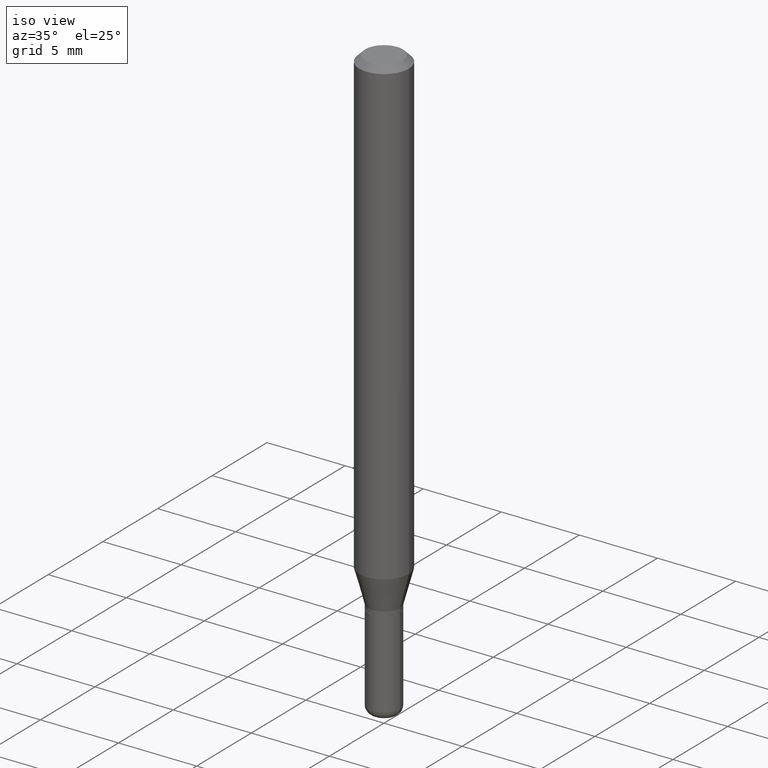
[diagram: clean part render]
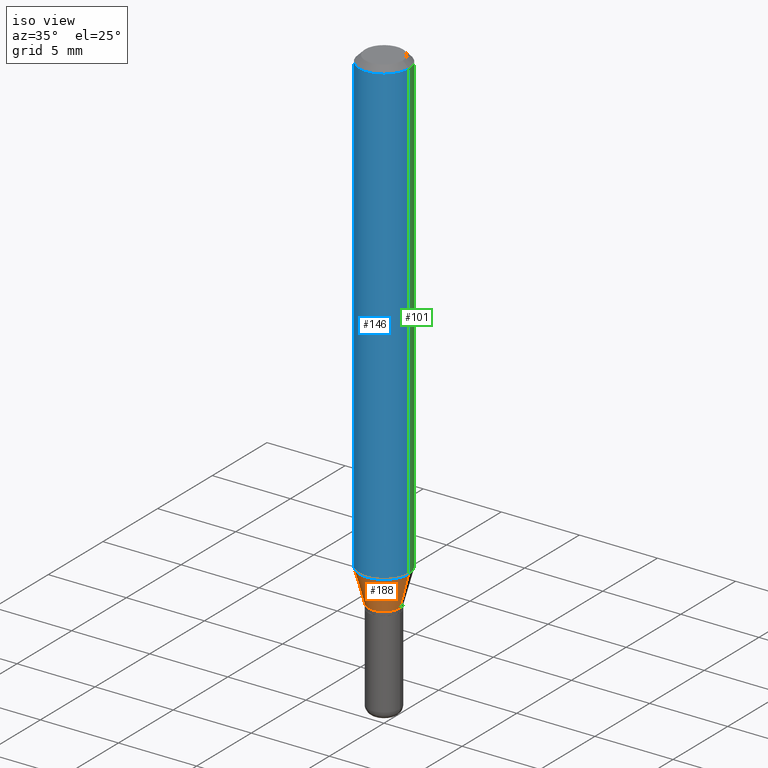
[diagram: same view with three faces highlighted in distinct colors, each labeled with its STEP entity id]
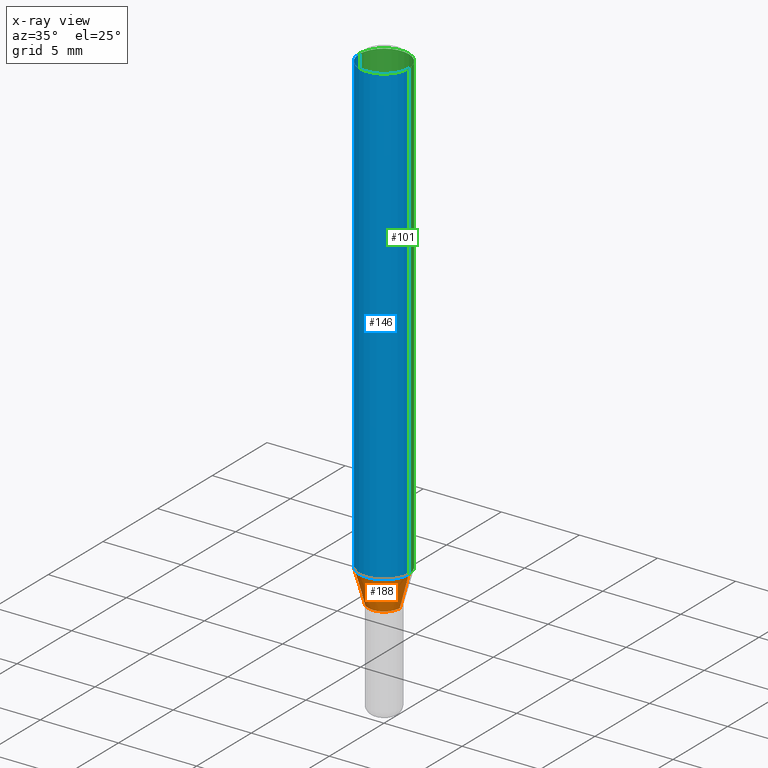
[diagram: x-ray of the same camera — body ghosted, the three highlighted faces saturated]
A machine part, iso view with three faces highlighted in distinct colors.
The next image is the same camera in x-ray (body ghosted, the three faces saturated) — at least one of them is partly hidden behind the body in this view.
Their STEP definitions:

[orange] entity #188 — the highlighted conical surface has half-angle 15 deg.
#4 = CARTESIAN_POINT ( 'NONE',  ( -0.04000000000000000083, -4.080134579249892145E-15, -1.250000000000000000 ) ) ;
#16 = EDGE_CURVE ( 'NONE', #430, #267, #190, .T. ) ;
#18 = ORIENTED_EDGE ( 'NONE', *, *, #16, .T. ) ;
#35 = EDGE_CURVE ( 'NONE', #399, #430, #443, .T. ) ;
#65 = ORIENTED_EDGE ( 'NONE', *, *, #35, .T. ) ;
#73 = DIRECTION ( 'NONE',  ( -2.445468806185136597E-29, 3.491481338843145583E-15, 1.000000000000000000 ) ) ;
#81 = AXIS2_PLACEMENT_3D ( 'NONE', #428, #229, #388 ) ;
#128 = EDGE_LOOP ( 'NONE', ( #216, #65, #18, #287 ) ) ;
#184 = CARTESIAN_POINT ( 'NONE',  ( 2.851487196488747125E-29, -4.071167994173504722E-15, -1.166028856829700366 ) ) ;
#185 = CARTESIAN_POINT ( 'NONE',  ( 3.056836007731421306E-29, -4.364351673553932471E-15, -1.250000000000000000 ) ) ;
#188 = ADVANCED_FACE ( 'NONE', ( #382 ), #260, .T. ) ;
#190 = LINE ( 'NONE', #346, #478 ) ;
#216 = ORIENTED_EDGE ( 'NONE', *, *, #334, .F. ) ;
#221 = CIRCLE ( 'NONE', #412, 0.06250000000000000000 ) ;
#229 = DIRECTION ( 'NONE',  ( -2.445468806185136597E-29, 3.491481338843145583E-15, 1.000000000000000000 ) ) ;
#244 = DIRECTION ( 'NONE',  ( -0.2588190451025207950, 5.211531920934546309E-15, 0.9659258262890682012 ) ) ;
#260 = CONICAL_SURFACE ( 'NONE', #339, 0.04000000000000000083, 0.2617993877991495189 ) ;
#267 = VERTEX_POINT ( 'NONE', #457 ) ;
#286 = LINE ( 'NONE', #4, #401 ) ;
#287 = ORIENTED_EDGE ( 'NONE', *, *, #488, .F. ) ;
#298 = DIRECTION ( 'NONE',  ( -2.445468806185136597E-29, 3.491481338843145583E-15, 1.000000000000000000 ) ) ;
#303 = DIRECTION ( 'NONE',  ( 1.000000000000000000, -6.982962677686271444E-15, 0.000000000000000000 ) ) ;
#334 = EDGE_CURVE ( 'NONE', #399, #380, #286, .T. ) ;
#339 = AXIS2_PLACEMENT_3D ( 'NONE', #185, #298, #303 ) ;
#346 = CARTESIAN_POINT ( 'NONE',  ( 0.04000000000000000083, -4.643670180661383298E-15, -1.250000000000000000 ) ) ;
#380 = VERTEX_POINT ( 'NONE', #438 ) ;
#382 = FACE_OUTER_BOUND ( 'NONE', #128, .T. ) ;
#383 = CARTESIAN_POINT ( 'NONE',  ( 0.04000000000000000083, -4.643670180661383298E-15, -1.250000000000000000 ) ) ;
#388 = DIRECTION ( 'NONE',  ( 1.000000000000000000, -6.982962677686271444E-15, 0.000000000000000000 ) ) ;
#399 = VERTEX_POINT ( 'NONE', #491 ) ;
#401 = VECTOR ( 'NONE', #244, 39.37007874015748854 ) ;
#412 = AXIS2_PLACEMENT_3D ( 'NONE', #184, #73, #504 ) ;
#428 = CARTESIAN_POINT ( 'NONE',  ( 3.056836007731421306E-29, -4.364351673553932471E-15, -1.250000000000000000 ) ) ;
#430 = VERTEX_POINT ( 'NONE', #383 ) ;
#438 = CARTESIAN_POINT ( 'NONE',  ( -0.06250000000000000000, -3.627078784323442106E-15, -1.166028856829700366 ) ) ;
#443 = CIRCLE ( 'NONE', #81, 0.04000000000000000083 ) ;
#457 = CARTESIAN_POINT ( 'NONE',  ( 0.06250000000000000000, -4.507603161528897181E-15, -1.166028856829700366 ) ) ;
#478 = VECTOR ( 'NONE', #500, 39.37007874015748854 ) ;
#488 = EDGE_CURVE ( 'NONE', #380, #267, #221, .T. ) ;
#491 = CARTESIAN_POINT ( 'NONE',  ( -0.04000000000000000083, -3.853606681786667125E-15, -1.250000000000000000 ) ) ;
#500 = DIRECTION ( 'NONE',  ( 0.2588190451025207950, 1.565188264969625912E-15, 0.9659258262890682012 ) ) ;
#504 = DIRECTION ( 'NONE',  ( 1.000000000000000000, -6.982962677686262766E-15, 0.000000000000000000 ) ) ;

[blue] entity #146 — the highlighted cylindrical surface (edge-blend (fillet) strip) has radius 1.5875 mm, axis along (-0, 0, 1).
#3 = CYLINDRICAL_SURFACE ( 'NONE', #416, 0.06250000000000000000 ) ;
#39 = EDGE_CURVE ( 'NONE', #484, #324, #241, .T. ) ;
#73 = DIRECTION ( 'NONE',  ( -2.445468806185136597E-29, 3.491481338843145583E-15, 1.000000000000000000 ) ) ;
#76 = LINE ( 'NONE', #238, #441 ) ;
#106 = VECTOR ( 'NONE', #503, 39.37007874015748143 ) ;
#139 = DIRECTION ( 'NONE',  ( 1.000000000000000000, -6.982962677686266711E-15, 0.000000000000000000 ) ) ;
#146 = ADVANCED_FACE ( 'NONE', ( #337 ), #3, .T. ) ;
#173 = DIRECTION ( 'NONE',  ( -2.445468806185136877E-29, 3.491481338843145188E-15, 1.000000000000000000 ) ) ;
#174 = DIRECTION ( 'NONE',  ( -2.445468806185136597E-29, 3.491481338843145583E-15, 1.000000000000000000 ) ) ;
#183 = EDGE_LOOP ( 'NONE', ( #358, #367, #508, #321 ) ) ;
#184 = CARTESIAN_POINT ( 'NONE',  ( 2.851487196488747125E-29, -4.071167994173504722E-15, -1.166028856829700366 ) ) ;
#194 = LINE ( 'NONE', #349, #106 ) ;
#196 = CARTESIAN_POINT ( 'NONE',  ( 3.668203209277632395E-31, -5.237222008264614861E-17, -0.01499999999999970281 ) ) ;
#221 = CIRCLE ( 'NONE', #412, 0.06250000000000000000 ) ;
#238 = CARTESIAN_POINT ( 'NONE',  ( 0.06250000000000000000, -4.364351673553916694E-16, 3.047610484872459871E-30 ) ) ;
#241 = CIRCLE ( 'NONE', #502, 0.06250000000000000000 ) ;
#267 = VERTEX_POINT ( 'NONE', #457 ) ;
#300 = EDGE_CURVE ( 'NONE', #380, #484, #194, .T. ) ;
#321 = ORIENTED_EDGE ( 'NONE', *, *, #39, .F. ) ;
#324 = VERTEX_POINT ( 'NONE', #517 ) ;
#337 = FACE_OUTER_BOUND ( 'NONE', #183, .T. ) ;
#349 = CARTESIAN_POINT ( 'NONE',  ( -0.06250000000000000000, 4.440892098500626162E-16, -3.074334431409316114E-30 ) ) ;
#358 = ORIENTED_EDGE ( 'NONE', *, *, #300, .F. ) ;
#367 = ORIENTED_EDGE ( 'NONE', *, *, #488, .T. ) ;
#380 = VERTEX_POINT ( 'NONE', #438 ) ;
#385 = EDGE_CURVE ( 'NONE', #267, #324, #76, .T. ) ;
#408 = CARTESIAN_POINT ( 'NONE',  ( 0.000000000000000000, 0.000000000000000000, 0.000000000000000000 ) ) ;
#412 = AXIS2_PLACEMENT_3D ( 'NONE', #184, #73, #504 ) ;
#416 = AXIS2_PLACEMENT_3D ( 'NONE', #408, #174, #492 ) ;
#424 = CARTESIAN_POINT ( 'NONE',  ( -0.06250000000000000000, -1.617680897278012693E-15, -0.01499999999999970281 ) ) ;
#438 = CARTESIAN_POINT ( 'NONE',  ( -0.06250000000000000000, -3.627078784323442106E-15, -1.166028856829700366 ) ) ;
#441 = VECTOR ( 'NONE', #173, 39.37007874015748143 ) ;
#457 = CARTESIAN_POINT ( 'NONE',  ( 0.06250000000000000000, -4.507603161528897181E-15, -1.166028856829700366 ) ) ;
#484 = VERTEX_POINT ( 'NONE', #424 ) ;
#488 = EDGE_CURVE ( 'NONE', #380, #267, #221, .T. ) ;
#492 = DIRECTION ( 'NONE',  ( 1.000000000000000000, -6.982962677686266711E-15, 4.876176775795935793E-29 ) ) ;
#502 = AXIS2_PLACEMENT_3D ( 'NONE', #196, #505, #139 ) ;
#503 = DIRECTION ( 'NONE',  ( -2.445468806185136877E-29, 3.491481338843145188E-15, 1.000000000000000000 ) ) ;
#504 = DIRECTION ( 'NONE',  ( 1.000000000000000000, -6.982962677686262766E-15, 0.000000000000000000 ) ) ;
#505 = DIRECTION ( 'NONE',  ( -2.445468806185136597E-29, 3.491481338843145583E-15, 1.000000000000000000 ) ) ;
#508 = ORIENTED_EDGE ( 'NONE', *, *, #385, .T. ) ;
#517 = CARTESIAN_POINT ( 'NONE',  ( 0.06250000000000000000, -4.888073874380378612E-16, -0.01499999999999970281 ) ) ;

[green] entity #101 — the highlighted cylindrical surface (edge-blend (fillet) strip) has radius 1.5875 mm, axis along (-0, 0, 1).
#23 = ORIENTED_EDGE ( 'NONE', *, *, #215, .T. ) ;
#51 = AXIS2_PLACEMENT_3D ( 'NONE', #191, #501, #356 ) ;
#76 = LINE ( 'NONE', #238, #441 ) ;
#85 = DIRECTION ( 'NONE',  ( -2.445468806185136597E-29, 3.491481338843145583E-15, 1.000000000000000000 ) ) ;
#101 = ADVANCED_FACE ( 'NONE', ( #165 ), #330, .T. ) ;
#106 = VECTOR ( 'NONE', #503, 39.37007874015748143 ) ;
#120 = CARTESIAN_POINT ( 'NONE',  ( 0.000000000000000000, 0.000000000000000000, 0.000000000000000000 ) ) ;
#125 = CIRCLE ( 'NONE', #51, 0.06250000000000000000 ) ;
#148 = AXIS2_PLACEMENT_3D ( 'NONE', #490, #302, #422 ) ;
#165 = FACE_OUTER_BOUND ( 'NONE', #243, .T. ) ;
#173 = DIRECTION ( 'NONE',  ( -2.445468806185136877E-29, 3.491481338843145188E-15, 1.000000000000000000 ) ) ;
#191 = CARTESIAN_POINT ( 'NONE',  ( 2.851487196488747125E-29, -4.071167994173504722E-15, -1.166028856829700366 ) ) ;
#194 = LINE ( 'NONE', #349, #106 ) ;
#212 = AXIS2_PLACEMENT_3D ( 'NONE', #120, #85, #288 ) ;
#215 = EDGE_CURVE ( 'NONE', #267, #380, #125, .T. ) ;
#238 = CARTESIAN_POINT ( 'NONE',  ( 0.06250000000000000000, -4.364351673553916694E-16, 3.047610484872459871E-30 ) ) ;
#243 = EDGE_LOOP ( 'NONE', ( #23, #445, #348, #329 ) ) ;
#267 = VERTEX_POINT ( 'NONE', #457 ) ;
#288 = DIRECTION ( 'NONE',  ( 1.000000000000000000, -6.982962677686266711E-15, 4.876176775795935793E-29 ) ) ;
#300 = EDGE_CURVE ( 'NONE', #380, #484, #194, .T. ) ;
#302 = DIRECTION ( 'NONE',  ( -2.445468806185136597E-29, 3.491481338843145583E-15, 1.000000000000000000 ) ) ;
#324 = VERTEX_POINT ( 'NONE', #517 ) ;
#329 = ORIENTED_EDGE ( 'NONE', *, *, #385, .F. ) ;
#330 = CYLINDRICAL_SURFACE ( 'NONE', #212, 0.06250000000000000000 ) ;
#348 = ORIENTED_EDGE ( 'NONE', *, *, #400, .F. ) ;
#349 = CARTESIAN_POINT ( 'NONE',  ( -0.06250000000000000000, 4.440892098500626162E-16, -3.074334431409316114E-30 ) ) ;
#356 = DIRECTION ( 'NONE',  ( 1.000000000000000000, -6.982962677686262766E-15, 0.000000000000000000 ) ) ;
#380 = VERTEX_POINT ( 'NONE', #438 ) ;
#385 = EDGE_CURVE ( 'NONE', #267, #324, #76, .T. ) ;
#400 = EDGE_CURVE ( 'NONE', #324, #484, #477, .T. ) ;
#422 = DIRECTION ( 'NONE',  ( 1.000000000000000000, -6.982962677686266711E-15, 0.000000000000000000 ) ) ;
#424 = CARTESIAN_POINT ( 'NONE',  ( -0.06250000000000000000, -1.617680897278012693E-15, -0.01499999999999970281 ) ) ;
#438 = CARTESIAN_POINT ( 'NONE',  ( -0.06250000000000000000, -3.627078784323442106E-15, -1.166028856829700366 ) ) ;
#441 = VECTOR ( 'NONE', #173, 39.37007874015748143 ) ;
#445 = ORIENTED_EDGE ( 'NONE', *, *, #300, .T. ) ;
#457 = CARTESIAN_POINT ( 'NONE',  ( 0.06250000000000000000, -4.507603161528897181E-15, -1.166028856829700366 ) ) ;
#477 = CIRCLE ( 'NONE', #148, 0.06250000000000000000 ) ;
#484 = VERTEX_POINT ( 'NONE', #424 ) ;
#490 = CARTESIAN_POINT ( 'NONE',  ( 3.668203209277632395E-31, -5.237222008264614861E-17, -0.01499999999999970281 ) ) ;
#501 = DIRECTION ( 'NONE',  ( -2.445468806185136597E-29, 3.491481338843145583E-15, 1.000000000000000000 ) ) ;
#503 = DIRECTION ( 'NONE',  ( -2.445468806185136877E-29, 3.491481338843145188E-15, 1.000000000000000000 ) ) ;
#517 = CARTESIAN_POINT ( 'NONE',  ( 0.06250000000000000000, -4.888073874380378612E-16, -0.01499999999999970281 ) ) ;